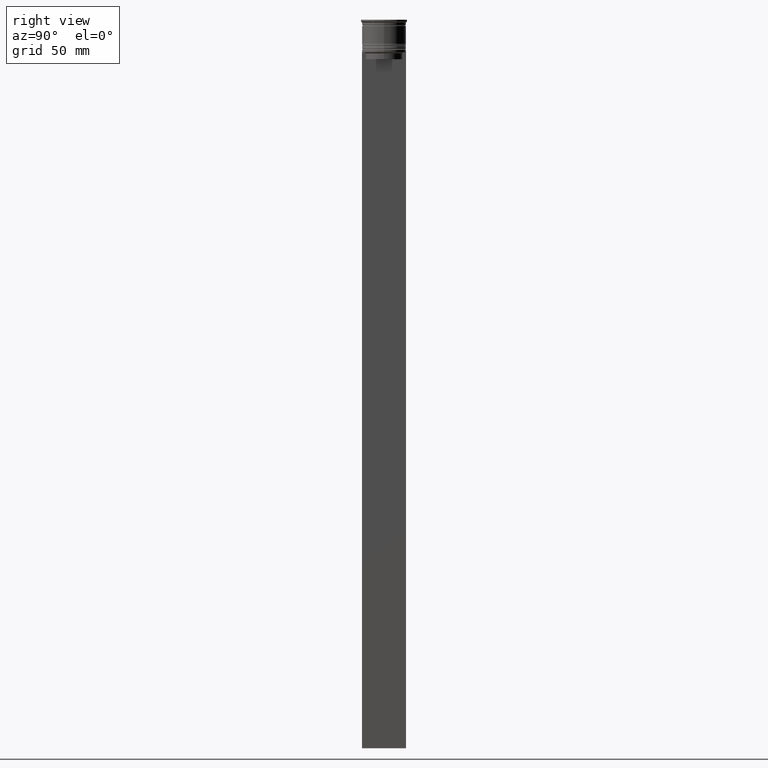
[diagram: clean part render]
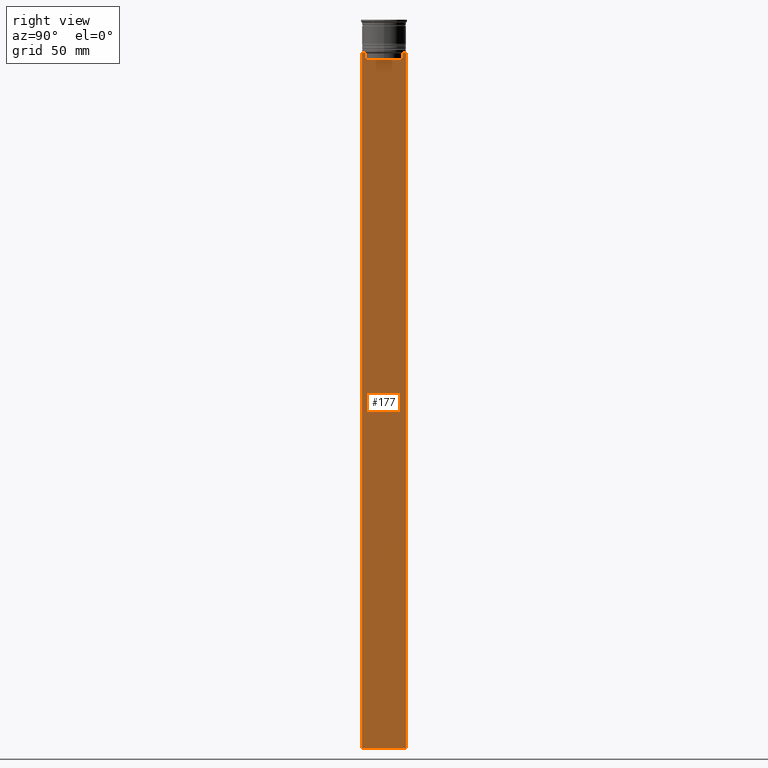
[diagram: same view with one face highlighted and labeled with its STEP entity id]
A machine part, right view. The second image highlights one B-rep face of the part: STEP entity #177.
In plain terms, the highlighted planar face has unit normal (-1, 0, 0).
Its self-contained STEP definition (entity closure, byte-faithful):
#24 = VERTEX_POINT ( 'NONE', #45 ) ;
#45 = CARTESIAN_POINT ( 'NONE',  ( 0.5000000000000000000, -7.884161337770803080, -14.50000000000000000 ) ) ;
#48 = ORIENTED_EDGE ( 'NONE', *, *, #1422, .F. ) ;
#51 = VECTOR ( 'NONE', #499, 1000.000000000000000 ) ;
#162 = EDGE_CURVE ( 'NONE', #24, #1251, #2532, .T. ) ;
#177 = ADVANCED_FACE ( 'NONE', ( #1175 ), #1150, .F. ) ;
#212 = CARTESIAN_POINT ( 'NONE',  ( 0.5000000000000000000, -9.500000000000001776, -314.0000000000000000 ) ) ;
#220 = CARTESIAN_POINT ( 'NONE',  ( 0.5000000000000000000, 8.385105843100605583, -14.00000000000000178 ) ) ;
#226 = ORIENTED_EDGE ( 'NONE', *, *, #737, .T. ) ;
#282 = CARTESIAN_POINT ( 'NONE',  ( 0.5000000000000000000, 8.218133718559618828, -14.16667606394327983 ) ) ;
#288 = EDGE_CURVE ( 'NONE', #1321, #24, #701, .T. ) ;
#305 = DIRECTION ( 'NONE',  ( -1.000000000000000000, 0.000000000000000000, 0.000000000000000000 ) ) ;
#310 = EDGE_CURVE ( 'NONE', #343, #540, #2423, .T. ) ;
#324 = CARTESIAN_POINT ( 'NONE',  ( 0.5000000000000000000, 7.884161337770803080, -14.50000000000000000 ) ) ;
#326 = DIRECTION ( 'NONE',  ( 0.000000000000000000, -1.000000000000000000, 0.000000000000000000 ) ) ;
#331 = CARTESIAN_POINT ( 'NONE',  ( 0.5000000000000000000, -7.884161337770803080, 0.000000000000000000 ) ) ;
#343 = VERTEX_POINT ( 'NONE', #1014 ) ;
#368 = LINE ( 'NONE', #998, #2333 ) ;
#374 = ORIENTED_EDGE ( 'NONE', *, *, #2072, .T. ) ;
#389 = VERTEX_POINT ( 'NONE', #1811 ) ;
#392 = VERTEX_POINT ( 'NONE', #220 ) ;
#411 = LINE ( 'NONE', #212, #1996 ) ;
#421 = EDGE_CURVE ( 'NONE', #389, #1703, #2088, .T. ) ;
#433 = DIRECTION ( 'NONE',  ( 0.000000000000000000, -1.000000000000000000, 0.000000000000000000 ) ) ;
#448 = B_SPLINE_CURVE_WITH_KNOTS ( 'NONE', 3,
 ( #1372, #282, #1152, #324 ),
 .UNSPECIFIED., .F., .F.,
 ( 4, 4 ),
 ( 0.01426761478740281447, 0.01497538974438914448 ),
 .UNSPECIFIED. ) ;
#475 = VECTOR ( 'NONE', #1760, 1000.000000000000000 ) ;
#498 = VECTOR ( 'NONE', #2641, 1000.000000000000000 ) ;
#499 = DIRECTION ( 'NONE',  ( 0.000000000000000000, 0.000000000000000000, -1.000000000000000000 ) ) ;
#518 = CARTESIAN_POINT ( 'NONE',  ( 0.5000000000000000000, -9.500000000000001776, -314.0000000000000000 ) ) ;
#521 = EDGE_CURVE ( 'NONE', #1703, #392, #1924, .T. ) ;
#540 = VERTEX_POINT ( 'NONE', #518 ) ;
#589 = DIRECTION ( 'NONE',  ( 0.000000000000000000, -1.000000000000000000, 0.000000000000000000 ) ) ;
#605 = VECTOR ( 'NONE', #326, 1000.000000000000000 ) ;
#659 = ORIENTED_EDGE ( 'NONE', *, *, #521, .T. ) ;
#660 = CARTESIAN_POINT ( 'NONE',  ( 0.5000000000000000000, -9.500000000000001776, -14.00000000000000178 ) ) ;
#690 = ORIENTED_EDGE ( 'NONE', *, *, #421, .T. ) ;
#701 = LINE ( 'NONE', #331, #1842 ) ;
#707 = VERTEX_POINT ( 'NONE', #1633 ) ;
#713 = CARTESIAN_POINT ( 'NONE',  ( 0.5000000000000000000, -8.218133703942523738, -14.16667607853445787 ) ) ;
#737 = EDGE_CURVE ( 'NONE', #707, #1321, #368, .T. ) ;
#744 = CARTESIAN_POINT ( 'NONE',  ( 0.5000000000000000000, -9.386692708297204035, -14.00000000000000178 ) ) ;
#888 = CARTESIAN_POINT ( 'NONE',  ( 0.5000000000000000000, -8.385105843100605583, -14.00000000000000178 ) ) ;
#901 = CARTESIAN_POINT ( 'NONE',  ( 0.5000000000000000000, -7.884161337770803080, -17.00000000000000000 ) ) ;
#907 = DIRECTION ( 'NONE',  ( 0.000000000000000000, 0.000000000000000000, 1.000000000000000000 ) ) ;
#926 = ORIENTED_EDGE ( 'NONE', *, *, #2521, .T. ) ;
#940 = LINE ( 'NONE', #2617, #475 ) ;
#965 = ORIENTED_EDGE ( 'NONE', *, *, #1807, .T. ) ;
#998 = CARTESIAN_POINT ( 'NONE',  ( 0.5000000000000000000, 7.899999999999994138, -17.00000000000000000 ) ) ;
#1003 = VECTOR ( 'NONE', #1332, 1000.000000000000000 ) ;
#1014 = CARTESIAN_POINT ( 'NONE',  ( 0.5000000000000000000, -9.500000000000001776, -14.00000000000000178 ) ) ;
#1029 = DIRECTION ( 'NONE',  ( 0.000000000000000000, 1.000000000000000000, 0.000000000000000000 ) ) ;
#1055 = CARTESIAN_POINT ( 'NONE',  ( 0.5000000000000000000, 9.386692708297204035, -14.00000000000000178 ) ) ;
#1061 = EDGE_CURVE ( 'NONE', #2361, #343, #1759, .T. ) ;
#1119 = LINE ( 'NONE', #1355, #1003 ) ;
#1150 = PLANE ( 'NONE',  #2665 ) ;
#1152 = CARTESIAN_POINT ( 'NONE',  ( 0.5000000000000000000, 8.051152811434374001, -14.33334332653219079 ) ) ;
#1158 = CARTESIAN_POINT ( 'NONE',  ( 0.5000000000000000000, -8.385105843100605583, -14.00000000000000178 ) ) ;
#1175 = FACE_OUTER_BOUND ( 'NONE', #1457, .T. ) ;
#1251 = VERTEX_POINT ( 'NONE', #888 ) ;
#1321 = VERTEX_POINT ( 'NONE', #901 ) ;
#1332 = DIRECTION ( 'NONE',  ( 0.000000000000000000, -1.000000000000000000, 0.000000000000000000 ) ) ;
#1355 = CARTESIAN_POINT ( 'NONE',  ( 0.5000000000000000000, -9.500000000000001776, -14.00000000000000178 ) ) ;
#1372 = CARTESIAN_POINT ( 'NONE',  ( 0.5000000000000000000, 8.385105843100605583, -14.00000000000000178 ) ) ;
#1422 = EDGE_CURVE ( 'NONE', #389, #2484, #940, .T. ) ;
#1457 = EDGE_LOOP ( 'NONE', ( #659, #965, #1891, #226, #2476, #2245, #926, #2117, #2224, #374, #48, #690 ) ) ;
#1535 = CARTESIAN_POINT ( 'NONE',  ( 0.5000000000000000000, 7.884161337770803080, -14.50000000000000000 ) ) ;
#1633 = CARTESIAN_POINT ( 'NONE',  ( 0.5000000000000000000, 7.884161337770803080, -17.00000000000000000 ) ) ;
#1703 = VERTEX_POINT ( 'NONE', #1055 ) ;
#1759 = LINE ( 'NONE', #2591, #605 ) ;
#1760 = DIRECTION ( 'NONE',  ( 0.000000000000000000, 0.000000000000000000, -1.000000000000000000 ) ) ;
#1771 = LINE ( 'NONE', #1977, #51 ) ;
#1790 = EDGE_CURVE ( 'NONE', #2488, #707, #1771, .T. ) ;
#1807 = EDGE_CURVE ( 'NONE', #392, #2488, #448, .T. ) ;
#1811 = CARTESIAN_POINT ( 'NONE',  ( 0.5000000000000000000, 9.499999999999998224, -14.00000000000000178 ) ) ;
#1842 = VECTOR ( 'NONE', #2358, 1000.000000000000000 ) ;
#1891 = ORIENTED_EDGE ( 'NONE', *, *, #1790, .T. ) ;
#1902 = VECTOR ( 'NONE', #433, 1000.000000000000000 ) ;
#1924 = LINE ( 'NONE', #2340, #1902 ) ;
#1977 = CARTESIAN_POINT ( 'NONE',  ( 0.5000000000000000000, 7.884161337770803080, 0.000000000000000000 ) ) ;
#1984 = VECTOR ( 'NONE', #2114, 1000.000000000000000 ) ;
#1996 = VECTOR ( 'NONE', #1029, 1000.000000000000000 ) ;
#2072 = EDGE_CURVE ( 'NONE', #540, #2484, #411, .T. ) ;
#2088 = LINE ( 'NONE', #660, #1984 ) ;
#2114 = DIRECTION ( 'NONE',  ( 0.000000000000000000, -1.000000000000000000, 0.000000000000000000 ) ) ;
#2117 = ORIENTED_EDGE ( 'NONE', *, *, #1061, .T. ) ;
#2163 = CARTESIAN_POINT ( 'NONE',  ( 0.5000000000000000000, -9.500000000000001776, 5.026297590440445440 ) ) ;
#2224 = ORIENTED_EDGE ( 'NONE', *, *, #310, .T. ) ;
#2225 = CARTESIAN_POINT ( 'NONE',  ( 0.5000000000000000000, 9.499999999999998224, -314.0000000000000000 ) ) ;
#2245 = ORIENTED_EDGE ( 'NONE', *, *, #162, .T. ) ;
#2333 = VECTOR ( 'NONE', #589, 1000.000000000000000 ) ;
#2340 = CARTESIAN_POINT ( 'NONE',  ( 0.5000000000000000000, -9.500000000000001776, -14.00000000000000178 ) ) ;
#2358 = DIRECTION ( 'NONE',  ( -0.000000000000000000, -0.000000000000000000, 1.000000000000000000 ) ) ;
#2361 = VERTEX_POINT ( 'NONE', #744 ) ;
#2384 = CARTESIAN_POINT ( 'NONE',  ( 0.5000000000000000000, -7.884161337770803080, -14.50000000000000000 ) ) ;
#2423 = LINE ( 'NONE', #2667, #498 ) ;
#2476 = ORIENTED_EDGE ( 'NONE', *, *, #288, .T. ) ;
#2484 = VERTEX_POINT ( 'NONE', #2225 ) ;
#2488 = VERTEX_POINT ( 'NONE', #1535 ) ;
#2521 = EDGE_CURVE ( 'NONE', #1251, #2361, #1119, .T. ) ;
#2532 = B_SPLINE_CURVE_WITH_KNOTS ( 'NONE', 3,
 ( #2384, #2575, #713, #1158 ),
 .UNSPECIFIED., .F., .F.,
 ( 4, 4 ),
 ( 0.03673372442973153046, 0.03744389749832059688 ),
 .UNSPECIFIED. ) ;
#2575 = CARTESIAN_POINT ( 'NONE',  ( 0.5000000000000000000, -8.051152795888546265, -14.33334334204685057 ) ) ;
#2591 = CARTESIAN_POINT ( 'NONE',  ( 0.5000000000000000000, -9.500000000000001776, -14.00000000000000178 ) ) ;
#2617 = CARTESIAN_POINT ( 'NONE',  ( 0.5000000000000000000, 9.499999999999998224, 5.026297590440445440 ) ) ;
#2641 = DIRECTION ( 'NONE',  ( 0.000000000000000000, 0.000000000000000000, -1.000000000000000000 ) ) ;
#2665 = AXIS2_PLACEMENT_3D ( 'NONE', #2163, #305, #907 ) ;
#2667 = CARTESIAN_POINT ( 'NONE',  ( 0.5000000000000000000, -9.500000000000001776, 5.026297590440445440 ) ) ;